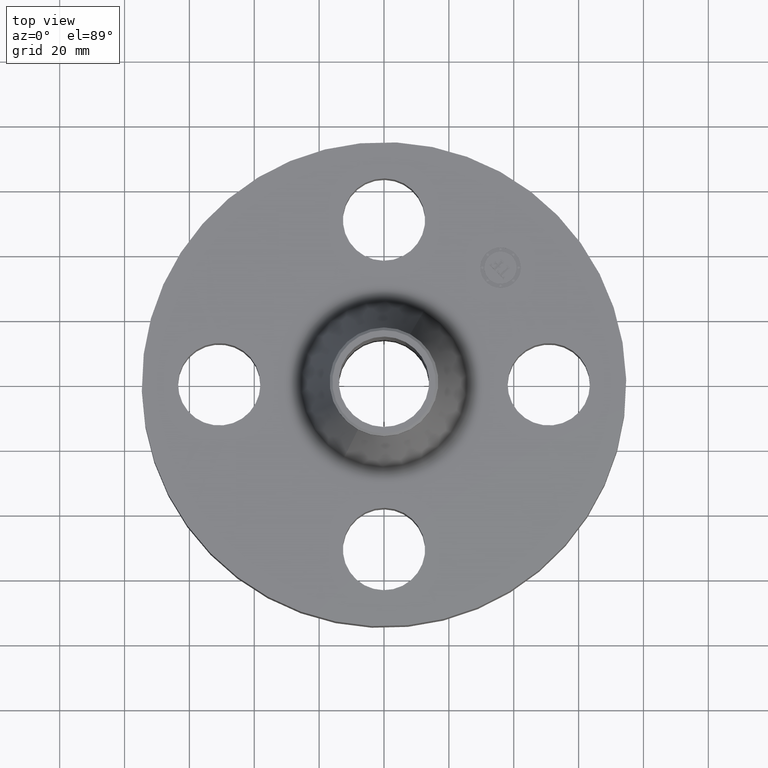
[diagram: clean part render]
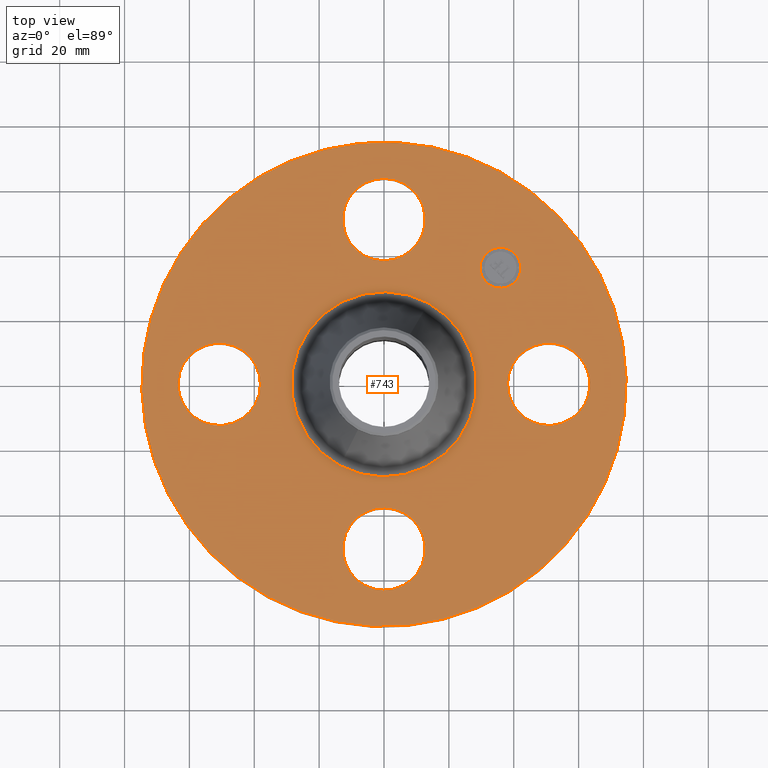
[diagram: same view with one face highlighted and labeled with its STEP entity id]
A machine part, top view. The second image highlights one B-rep face of the part: STEP entity #743.
In plain terms, the highlighted planar face has unit normal (0, 0, -1).
Its self-contained STEP definition (entity closure, byte-faithful):
#65=AXIS2_PLACEMENT_3D('Circle Axis2P3D',#63,#64,$) ;
#82=AXIS2_PLACEMENT_3D('Circle Axis2P3D',#80,#81,$) ;
#115=AXIS2_PLACEMENT_3D('Circle Axis2P3D',#113,#114,$) ;
#139=AXIS2_PLACEMENT_3D('Circle Axis2P3D',#137,#138,$) ;
#156=AXIS2_PLACEMENT_3D('Circle Axis2P3D',#154,#155,$) ;
#191=AXIS2_PLACEMENT_3D('Circle Axis2P3D',#189,#190,$) ;
#588=AXIS2_PLACEMENT_3D('Circle Axis2P3D',#586,#587,$) ;
#600=AXIS2_PLACEMENT_3D('Circle Axis2P3D',#598,#599,$) ;
#631=AXIS2_PLACEMENT_3D('Circle Axis2P3D',#629,#630,$) ;
#643=AXIS2_PLACEMENT_3D('Circle Axis2P3D',#641,#642,$) ;
#674=AXIS2_PLACEMENT_3D('Circle Axis2P3D',#672,#673,$) ;
#686=AXIS2_PLACEMENT_3D('Circle Axis2P3D',#684,#685,$) ;
#699=AXIS2_PLACEMENT_3D('Plane Axis2P3D',#696,#697,#698) ;
#727=AXIS2_PLACEMENT_3D('Circle Axis2P3D',#725,#726,$) ;
#736=AXIS2_PLACEMENT_3D('Circle Axis2P3D',#734,#735,$) ;
#46=CARTESIAN_POINT('Vertex',(1.56120871906,0.239712769303,1.12)) ;
#60=CARTESIAN_POINT('Vertex',(2.43879128095,-0.239712769303,1.12)) ;
#63=CARTESIAN_POINT('Axis2P3D Location',(2.00000000001,0.,1.12)) ;
#80=CARTESIAN_POINT('Axis2P3D Location',(2.00000000001,0.,1.12)) ;
#110=CARTESIAN_POINT('Vertex',(-1.4095110835,-2.58009273197,1.12)) ;
#113=CARTESIAN_POINT('Axis2P3D Location',(0.,0.,1.12)) ;
#117=CARTESIAN_POINT('Vertex',(1.4095110835,2.58009273197,1.12)) ;
#137=CARTESIAN_POINT('Axis2P3D Location',(0.,0.,1.12)) ;
#154=CARTESIAN_POINT('Axis2P3D Location',(0.,0.,1.12)) ;
#158=CARTESIAN_POINT('Vertex',(0.538862975679,0.986382060665,1.12)) ;
#160=CARTESIAN_POINT('Vertex',(-0.538862975679,-0.986382060665,1.12)) ;
#189=CARTESIAN_POINT('Axis2P3D Location',(0.,0.,1.12)) ;
#576=CARTESIAN_POINT('Vertex',(-0.239712769303,1.56120871906,1.12)) ;
#583=CARTESIAN_POINT('Vertex',(0.239712769303,2.43879128095,1.12)) ;
#586=CARTESIAN_POINT('Axis2P3D Location',(-3.67394039746E-016,2.00000000001,1.12)) ;
#598=CARTESIAN_POINT('Axis2P3D Location',(-3.67394039746E-016,2.00000000001,1.12)) ;
#619=CARTESIAN_POINT('Vertex',(-1.56120871906,-0.239712769303,1.12)) ;
#626=CARTESIAN_POINT('Vertex',(-2.43879128095,0.239712769303,1.12)) ;
#629=CARTESIAN_POINT('Axis2P3D Location',(-2.00000000001,-2.4492935983E-016,1.12)) ;
#641=CARTESIAN_POINT('Axis2P3D Location',(-2.00000000001,-2.4492935983E-016,1.12)) ;
#662=CARTESIAN_POINT('Vertex',(0.239712769303,-1.56120871906,1.12)) ;
#669=CARTESIAN_POINT('Vertex',(-0.239712769303,-2.43879128095,1.12)) ;
#672=CARTESIAN_POINT('Axis2P3D Location',(1.22464679915E-016,-2.00000000001,1.12)) ;
#684=CARTESIAN_POINT('Axis2P3D Location',(1.22464679915E-016,-2.00000000001,1.12)) ;
#696=CARTESIAN_POINT('Axis2P3D Location',(0.,2.94000000001,1.12)) ;
#725=CARTESIAN_POINT('Axis2P3D Location',(1.41421356238,1.41421356238,1.12)) ;
#729=CARTESIAN_POINT('Vertex',(1.23920463403,1.58922249072,1.12)) ;
#731=CARTESIAN_POINT('Vertex',(1.58922249072,1.23920463403,1.12)) ;
#734=CARTESIAN_POINT('Axis2P3D Location',(1.41421356238,1.41421356238,1.12)) ;
#64=DIRECTION('Axis2P3D Direction',(0.,-0.,-0.0393700787402)) ;
#81=DIRECTION('Axis2P3D Direction',(0.,-0.,-0.0393700787402)) ;
#114=DIRECTION('Axis2P3D Direction',(0.,0.,-0.0393700787402)) ;
#138=DIRECTION('Axis2P3D Direction',(0.,0.,-0.0393700787402)) ;
#155=DIRECTION('Axis2P3D Direction',(0.,0.,-0.0393700787402)) ;
#190=DIRECTION('Axis2P3D Direction',(0.,0.,-0.0393700787402)) ;
#587=DIRECTION('Axis2P3D Direction',(0.,0.,-0.0393700787402)) ;
#599=DIRECTION('Axis2P3D Direction',(0.,0.,-0.0393700787402)) ;
#630=DIRECTION('Axis2P3D Direction',(-0.,0.,-0.0393700787402)) ;
#642=DIRECTION('Axis2P3D Direction',(-0.,0.,-0.0393700787402)) ;
#673=DIRECTION('Axis2P3D Direction',(0.,-0.,-0.0393700787402)) ;
#685=DIRECTION('Axis2P3D Direction',(0.,-0.,-0.0393700787402)) ;
#697=DIRECTION('Axis2P3D Direction',(0.,0.,-0.0393700787402)) ;
#698=DIRECTION('Axis2P3D XDirection',(0.0393700787402,0.,0.)) ;
#726=DIRECTION('Axis2P3D Direction',(0.,0.,-0.0393700787402)) ;
#735=DIRECTION('Axis2P3D Direction',(0.,0.,-0.0393700787402)) ;
#702=ORIENTED_EDGE('',*,*,#141,.F.) ;
#703=ORIENTED_EDGE('',*,*,#119,.F.) ;
#706=ORIENTED_EDGE('',*,*,#67,.T.) ;
#707=ORIENTED_EDGE('',*,*,#84,.T.) ;
#710=ORIENTED_EDGE('',*,*,#193,.T.) ;
#711=ORIENTED_EDGE('',*,*,#162,.T.) ;
#714=ORIENTED_EDGE('',*,*,#688,.T.) ;
#715=ORIENTED_EDGE('',*,*,#676,.T.) ;
#718=ORIENTED_EDGE('',*,*,#645,.T.) ;
#719=ORIENTED_EDGE('',*,*,#633,.T.) ;
#722=ORIENTED_EDGE('',*,*,#602,.T.) ;
#723=ORIENTED_EDGE('',*,*,#590,.T.) ;
#740=ORIENTED_EDGE('',*,*,#733,.T.) ;
#741=ORIENTED_EDGE('',*,*,#738,.T.) ;
#708=FACE_BOUND('',#705,.T.) ;
#712=FACE_BOUND('',#709,.T.) ;
#716=FACE_BOUND('',#713,.T.) ;
#720=FACE_BOUND('',#717,.T.) ;
#724=FACE_BOUND('',#721,.T.) ;
#742=FACE_BOUND('',#739,.T.) ;
#743=ADVANCED_FACE('PartBody',(#704,#708,#712,#716,#720,#724,#742),#700,.F.) ;
#66=CIRCLE('generated circle',#65,0.500000000002) ;
#83=CIRCLE('generated circle',#82,0.500000000002) ;
#116=CIRCLE('generated circle',#115,2.94000000001) ;
#140=CIRCLE('generated circle',#139,2.94000000001) ;
#157=CIRCLE('generated circle',#156,1.12397636815) ;
#192=CIRCLE('generated circle',#191,1.12397636815) ;
#589=CIRCLE('generated circle',#588,0.500000000002) ;
#601=CIRCLE('generated circle',#600,0.500000000002) ;
#632=CIRCLE('generated circle',#631,0.500000000002) ;
#644=CIRCLE('generated circle',#643,0.500000000002) ;
#675=CIRCLE('generated circle',#674,0.500000000002) ;
#687=CIRCLE('generated circle',#686,0.500000000002) ;
#728=CIRCLE('generated circle',#727,0.247500000001) ;
#737=CIRCLE('generated circle',#736,0.247500000001) ;
#67=EDGE_CURVE('',#47,#61,#66,.T.) ;
#84=EDGE_CURVE('',#61,#47,#83,.T.) ;
#119=EDGE_CURVE('',#111,#118,#116,.T.) ;
#141=EDGE_CURVE('',#118,#111,#140,.T.) ;
#162=EDGE_CURVE('',#159,#161,#157,.T.) ;
#193=EDGE_CURVE('',#161,#159,#192,.T.) ;
#590=EDGE_CURVE('',#577,#584,#589,.T.) ;
#602=EDGE_CURVE('',#584,#577,#601,.T.) ;
#633=EDGE_CURVE('',#620,#627,#632,.T.) ;
#645=EDGE_CURVE('',#627,#620,#644,.T.) ;
#676=EDGE_CURVE('',#663,#670,#675,.T.) ;
#688=EDGE_CURVE('',#670,#663,#687,.T.) ;
#733=EDGE_CURVE('',#730,#732,#728,.T.) ;
#738=EDGE_CURVE('',#732,#730,#737,.T.) ;
#701=EDGE_LOOP('',(#702,#703)) ;
#705=EDGE_LOOP('',(#706,#707)) ;
#709=EDGE_LOOP('',(#710,#711)) ;
#713=EDGE_LOOP('',(#714,#715)) ;
#717=EDGE_LOOP('',(#718,#719)) ;
#721=EDGE_LOOP('',(#722,#723)) ;
#739=EDGE_LOOP('',(#740,#741)) ;
#704=FACE_OUTER_BOUND('',#701,.T.) ;
#700=PLANE('',#699) ;
#47=VERTEX_POINT('',#46) ;
#61=VERTEX_POINT('',#60) ;
#111=VERTEX_POINT('',#110) ;
#118=VERTEX_POINT('',#117) ;
#159=VERTEX_POINT('',#158) ;
#161=VERTEX_POINT('',#160) ;
#577=VERTEX_POINT('',#576) ;
#584=VERTEX_POINT('',#583) ;
#620=VERTEX_POINT('',#619) ;
#627=VERTEX_POINT('',#626) ;
#663=VERTEX_POINT('',#662) ;
#670=VERTEX_POINT('',#669) ;
#730=VERTEX_POINT('',#729) ;
#732=VERTEX_POINT('',#731) ;